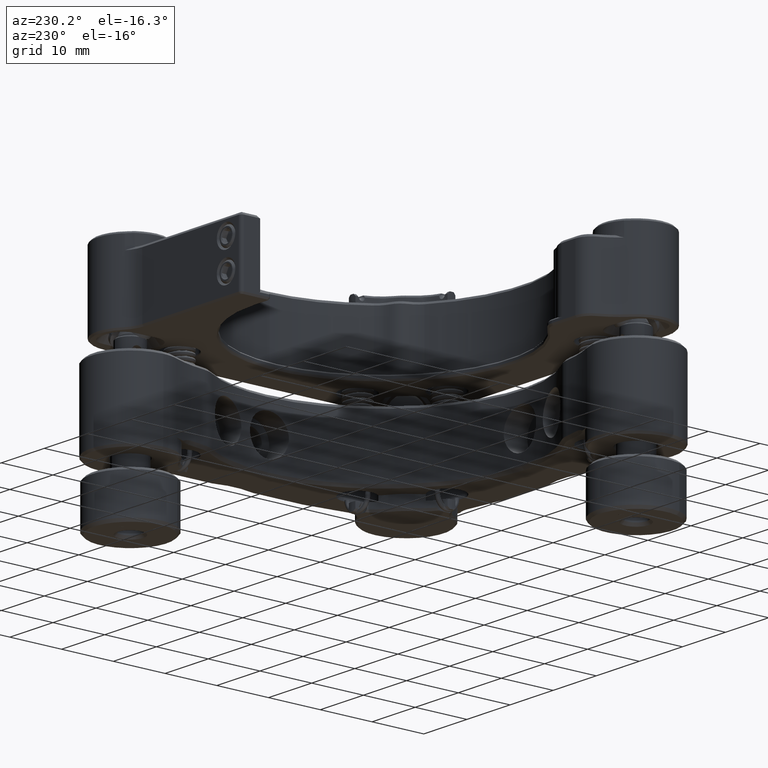
[diagram: clean part render]
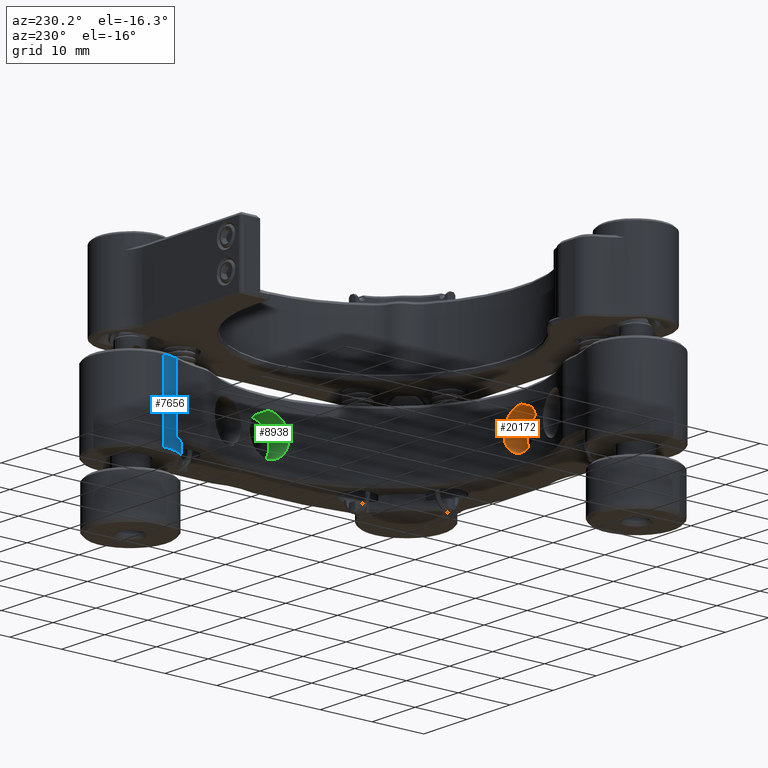
[diagram: same view with three faces highlighted in distinct colors, each labeled with its STEP entity id]
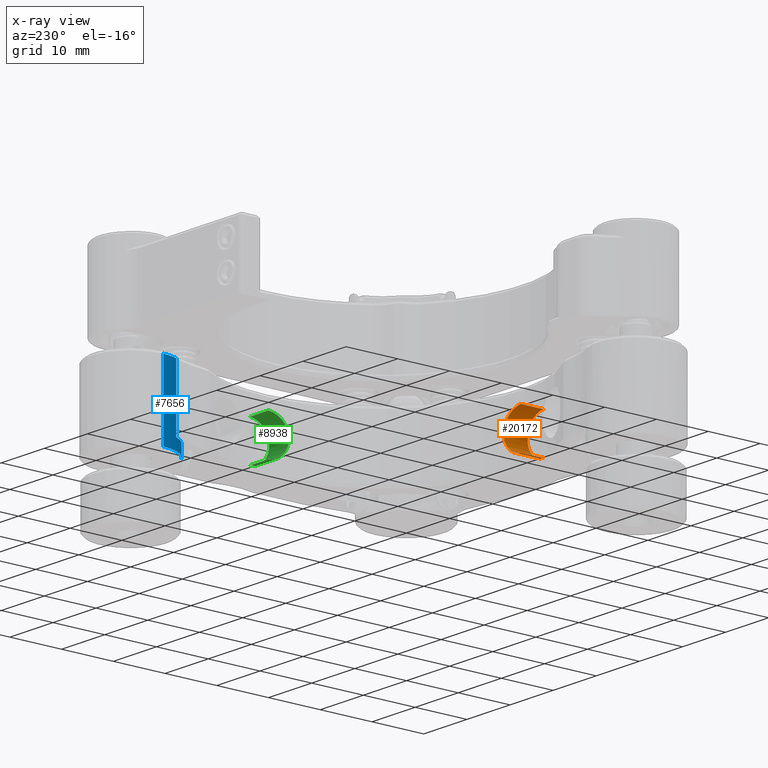
[diagram: x-ray of the same camera — body ghosted, the three highlighted faces saturated]
A machine part, auxiliary view with three faces highlighted in distinct colors.
The next image is the same camera in x-ray (body ghosted, the three faces saturated) — at least one of them is partly hidden behind the body in this view.
Their STEP definitions:

[orange] entity #20172 — the highlighted cylindrical surface (edge-blend (fillet) strip) has radius 3.7703 mm, axis along (-0, -1, 0).
#42 = B_SPLINE_CURVE_WITH_KNOTS ( 'NONE', 3,
 ( #7611, #1276, #28153, #18933, #25539, #19211, #26099, #16575, #9974, #12726, #12158, #1004, #25963, #8189, #10393, #5407, #8042, #27881, #21113, #14924, #7762, #3763, #5979, #21403, #16851, #16994, #19074, #5842, #17143, #7900, #1146, #16718, #21263, #21684 ),
 .UNSPECIFIED., .F., .F.,
 ( 4, 2, 2, 2, 2, 2, 2, 2, 2, 2, 2, 2, 2, 2, 2, 2, 4 ),
 ( 3.469446951953614189E-18, 0.0007376561240977195675, 0.001475312248195435666, 0.002212968372293151655, 0.002950624496390867862, 0.003688280620488584068, 0.004425936744586299841, 0.005163592868684016048, 0.005901248992781732254, 0.006638905116879448461, 0.007376561240977164667, 0.008114217365074880006, 0.008851873489172596213, 0.009589529613270312419, 0.01032718573736802863, 0.01106484186146574483, 0.01180249798556346104 ),
 .UNSPECIFIED. ) ;
#1004 = CARTESIAN_POINT ( 'NONE',  ( 22.10476989317027474, 14.16033097439479072, 49.40504102381640195 ) ) ;
#1146 = CARTESIAN_POINT ( 'NONE',  ( 24.39637902986271456, 13.97616607239538133, 54.94404336694015001 ) ) ;
#1276 = CARTESIAN_POINT ( 'NONE',  ( 25.12711925288105874, 13.95924649506379822, 47.52471170018480251 ) ) ;
#3763 = CARTESIAN_POINT ( 'NONE',  ( 21.98769283178292611, 14.17525771099215248, 52.96592419483435066 ) ) ;
#4610 = AXIS2_PLACEMENT_3D ( 'NONE', #25862, #18976, #23943 ) ;
#5014 = DIRECTION ( 'NONE',  ( -0.000000000000000000, -1.000000000000000000, -0.000000000000000000 ) ) ;
#5407 = CARTESIAN_POINT ( 'NONE',  ( 21.63033247960795791, 14.22362196544049695, 50.80249974806528712 ) ) ;
#5483 = DIRECTION ( 'NONE',  ( -0.000000000000000000, -1.000000000000000000, -0.000000000000000000 ) ) ;
#5842 = CARTESIAN_POINT ( 'NONE',  ( 23.48434237088630283, 14.02567020015363930, 54.56534500994882819 ) ) ;
#5979 = CARTESIAN_POINT ( 'NONE',  ( 22.10567037592638329, 14.16022696190246144, 53.18625125397421982 ) ) ;
#7611 = CARTESIAN_POINT ( 'NONE',  ( 25.37656882689397975, 13.95924649506379644, 47.52471170018480251 ) ) ;
#7762 = CARTESIAN_POINT ( 'NONE',  ( 21.79850721279483139, 14.20018146839782425, 52.50905154257457497 ) ) ;
#7833 = EDGE_CURVE ( 'NONE', #12141, #25299, #22822, .T. ) ;
#7858 = CARTESIAN_POINT ( 'NONE',  ( 25.37656882689398330, 9.641246495063857225, 55.06533670018478688 ) ) ;
#7900 = CARTESIAN_POINT ( 'NONE',  ( 24.16132574393052224, 13.98596769113505900, 54.87265622215816308 ) ) ;
#8042 = CARTESIAN_POINT ( 'NONE',  ( 21.60634823310222430, 14.22708111639233763, 51.04736425306089131 ) ) ;
#8189 = CARTESIAN_POINT ( 'NONE',  ( 21.79976161235194709, 14.20001365664462334, 50.07765369036393110 ) ) ;
#8207 = EDGE_LOOP ( 'NONE', ( #18237, #8501, #18986, #9811 ) ) ;
#8240 = CYLINDRICAL_SURFACE ( 'NONE', #4610, 3.770312499999983746 ) ;
#8501 = ORIENTED_EDGE ( 'NONE', *, *, #23695, .T. ) ;
#8780 = CARTESIAN_POINT ( 'NONE',  ( 25.37656882689398330, 5.069246495063857161, 47.52471170018480962 ) ) ;
#9811 = ORIENTED_EDGE ( 'NONE', *, *, #7833, .F. ) ;
#9974 = CARTESIAN_POINT ( 'NONE',  ( 22.88364109223867970, 14.07543941895698936, 48.45585141994685330 ) ) ;
#10393 = CARTESIAN_POINT ( 'NONE',  ( 21.72723564549185582, 14.21005534733393283, 50.31561905583442496 ) ) ;
#12141 = VERTEX_POINT ( 'NONE', #12944 ) ;
#12158 = CARTESIAN_POINT ( 'NONE',  ( 22.38038694353434011, 14.12771727079344153, 48.99293845210792853 ) ) ;
#12333 = VECTOR ( 'NONE', #28905, 1000.000000000000000 ) ;
#12726 = CARTESIAN_POINT ( 'NONE',  ( 22.53634045917296547, 14.11033886777820179, 48.80329917814676577 ) ) ;
#12866 = VECTOR ( 'NONE', #5483, 1000.000000000000000 ) ;
#12944 = CARTESIAN_POINT ( 'NONE',  ( 25.37656882689397975, 13.95924649506379644, 47.52471170018480251 ) ) ;
#13407 = CARTESIAN_POINT ( 'NONE',  ( 25.37656882689398330, 13.95924649506379644, 55.06533670018477977 ) ) ;
#13960 = DIRECTION ( 'NONE',  ( 0.000000000000000000, 0.000000000000000000, -1.000000000000000000 ) ) ;
#14924 = CARTESIAN_POINT ( 'NONE',  ( 21.72718992872334454, 14.21006210880483067, 52.27386678692716515 ) ) ;
#15867 = AXIS2_PLACEMENT_3D ( 'NONE', #25140, #5014, #13960 ) ;
#16101 = VERTEX_POINT ( 'NONE', #7858 ) ;
#16575 = CARTESIAN_POINT ( 'NONE',  ( 23.07734313213555311, 14.05774536952931797, 48.29677628363449315 ) ) ;
#16718 = CARTESIAN_POINT ( 'NONE',  ( 24.88021030507117715, 13.96276760726819965, 55.04065380485286596 ) ) ;
#16851 = CARTESIAN_POINT ( 'NONE',  ( 22.53462745292001657, 14.11050844244846303, 53.78508599245897415 ) ) ;
#16994 = CARTESIAN_POINT ( 'NONE',  ( 22.88612071282985738, 14.07519281455226512, 54.13662703900713069 ) ) ;
#17143 = CARTESIAN_POINT ( 'NONE',  ( 23.70495655099534815, 14.01070345503934966, 54.68353110358706459 ) ) ;
#17835 = CARTESIAN_POINT ( 'NONE',  ( 25.37656882689398330, 9.641246495063857225, 47.52471170018480251 ) ) ;
#18237 = ORIENTED_EDGE ( 'NONE', *, *, #21351, .T. ) ;
#18933 = CARTESIAN_POINT ( 'NONE',  ( 24.39956017503727637, 13.97605603924775153, 47.64520548320444249 ) ) ;
#18976 = DIRECTION ( 'NONE',  ( -0.000000000000000000, -1.000000000000000000, -0.000000000000000000 ) ) ;
#18986 = ORIENTED_EDGE ( 'NONE', *, *, #27059, .T. ) ;
#19074 = CARTESIAN_POINT ( 'NONE',  ( 23.07625499369126132, 14.05784553635074374, 54.29236892983590934 ) ) ;
#19211 = CARTESIAN_POINT ( 'NONE',  ( 23.70343210076023510, 14.01079873935426257, 47.90726214008126504 ) ) ;
#20172 = ADVANCED_FACE ( 'NONE', ( #28063 ), #8240, .F. ) ;
#21113 = CARTESIAN_POINT ( 'NONE',  ( 21.63076539719365243, 14.22356099660328610, 51.79005532857867422 ) ) ;
#21263 = CARTESIAN_POINT ( 'NONE',  ( 25.13034173180142261, 13.95924649506379822, 55.06533670018479398 ) ) ;
#21338 = LINE ( 'NONE', #27660, #12866 ) ;
#21351 = EDGE_CURVE ( 'NONE', #12141, #23523, #42, .T. ) ;
#21403 = CARTESIAN_POINT ( 'NONE',  ( 22.37851502601625953, 14.12793624197515463, 53.59441321741739728 ) ) ;
#21684 = CARTESIAN_POINT ( 'NONE',  ( 25.37656882689398330, 13.95924649506379644, 55.06533670018477977 ) ) ;
#22822 = LINE ( 'NONE', #8780, #12333 ) ;
#23523 = VERTEX_POINT ( 'NONE', #13407 ) ;
#23695 = EDGE_CURVE ( 'NONE', #23523, #16101, #21338, .T. ) ;
#23943 = DIRECTION ( 'NONE',  ( 0.000000000000000000, 0.000000000000000000, -1.000000000000000000 ) ) ;
#25140 = CARTESIAN_POINT ( 'NONE',  ( 25.37656882689398330, 9.641246495063857225, 51.29502420018479114 ) ) ;
#25299 = VERTEX_POINT ( 'NONE', #17835 ) ;
#25539 = CARTESIAN_POINT ( 'NONE',  ( 24.15991463039726383, 13.98603159907343851, 47.71786459424584592 ) ) ;
#25862 = CARTESIAN_POINT ( 'NONE',  ( 25.37656882689398330, 5.069246495063857161, 51.29502420018479114 ) ) ;
#25963 = CARTESIAN_POINT ( 'NONE',  ( 21.98785552115188935, 14.17523885144085583, 49.62404755771850517 ) ) ;
#26099 = CARTESIAN_POINT ( 'NONE',  ( 23.48697977085298305, 14.02547676107670505, 48.02311610798143704 ) ) ;
#27059 = EDGE_CURVE ( 'NONE', #16101, #25299, #28539, .T. ) ;
#27660 = CARTESIAN_POINT ( 'NONE',  ( 25.37656882689398330, 5.069246495063857161, 55.06533670018477977 ) ) ;
#27881 = CARTESIAN_POINT ( 'NONE',  ( 21.60616494286484013, 14.22710729082757375, 51.53987788416527849 ) ) ;
#28063 = FACE_OUTER_BOUND ( 'NONE', #8207, .T. ) ;
#28153 = CARTESIAN_POINT ( 'NONE',  ( 24.88190059546632327, 13.96274296121777070, 47.54922309582286744 ) ) ;
#28539 = CIRCLE ( 'NONE', #15867, 3.770312499999990852 ) ;
#28905 = DIRECTION ( 'NONE',  ( -0.000000000000000000, -1.000000000000000000, -0.000000000000000000 ) ) ;

[blue] entity #7656 — the highlighted cylindrical surface (partial cylindrical patch) has radius 7.62 mm, axis along (0, -0, 1).
#488 = DIRECTION ( 'NONE',  ( 1.000000000000000000, 0.000000000000000000, 0.000000000000000000 ) ) ;
#578 = VERTEX_POINT ( 'NONE', #11325 ) ;
#1262 = DIRECTION ( 'NONE',  ( -0.000000000000000000, -0.000000000000000000, -1.000000000000000000 ) ) ;
#1340 = VERTEX_POINT ( 'NONE', #28634 ) ;
#1763 = DIRECTION ( 'NONE',  ( -0.000000000000000000, -0.000000000000000000, -1.000000000000000000 ) ) ;
#2396 = CARTESIAN_POINT ( 'NONE',  ( -1.293431173105943799, 67.29924649506376966, 59.80402420018482701 ) ) ;
#3211 = VECTOR ( 'NONE', #26579, 1000.000000000000000 ) ;
#3413 = AXIS2_PLACEMENT_3D ( 'NONE', #17061, #1763, #26018 ) ;
#4669 = CIRCLE ( 'NONE', #8888, 7.620000000000028528 ) ;
#5610 = ORIENTED_EDGE ( 'NONE', *, *, #6536, .F. ) ;
#6536 = EDGE_CURVE ( 'NONE', #17235, #1340, #13994, .T. ) ;
#7656 = ADVANCED_FACE ( 'NONE', ( #19271 ), #28212, .T. ) ;
#8007 = DIRECTION ( 'NONE',  ( -0.000000000000000000, -0.000000000000000000, 1.000000000000000000 ) ) ;
#8421 = EDGE_LOOP ( 'NONE', ( #15669, #20505, #5610, #16529, #14077, #28189 ) ) ;
#8888 = AXIS2_PLACEMENT_3D ( 'NONE', #16814, #8007, #15039 ) ;
#9304 = DIRECTION ( 'NONE',  ( 0.000000000000000000, 0.000000000000000000, -1.000000000000000000 ) ) ;
#9785 = CARTESIAN_POINT ( 'NONE',  ( 6.326568826894084729, 67.29924649506376966, 45.45302420018475686 ) ) ;
#11325 = CARTESIAN_POINT ( 'NONE',  ( 5.686685992947481338, 64.24271834237710266, 57.64502420018478546 ) ) ;
#11430 = AXIS2_PLACEMENT_3D ( 'NONE', #2396, #9304, #488 ) ;
#11764 = EDGE_CURVE ( 'NONE', #12102, #14571, #4669, .T. ) ;
#12102 = VERTEX_POINT ( 'NONE', #15584 ) ;
#12196 = EDGE_CURVE ( 'NONE', #17235, #578, #24856, .T. ) ;
#12435 = LINE ( 'NONE', #21389, #14643 ) ;
#12920 = CARTESIAN_POINT ( 'NONE',  ( 6.326568826894084729, 67.29924649506376966, 60.18502420018479171 ) ) ;
#13835 = EDGE_CURVE ( 'NONE', #578, #12102, #12435, .T. ) ;
#13994 = LINE ( 'NONE', #16351, #15085 ) ;
#14077 = ORIENTED_EDGE ( 'NONE', *, *, #13835, .T. ) ;
#14571 = VERTEX_POINT ( 'NONE', #9785 ) ;
#14643 = VECTOR ( 'NONE', #1262, 1000.000000000000000 ) ;
#15039 = DIRECTION ( 'NONE',  ( 1.000000000000000000, 0.000000000000000000, 0.000000000000000000 ) ) ;
#15085 = VECTOR ( 'NONE', #18866, 1000.000000000000000 ) ;
#15584 = CARTESIAN_POINT ( 'NONE',  ( 5.686685992947523083, 64.24271834237707424, 45.45302420018476397 ) ) ;
#15669 = ORIENTED_EDGE ( 'NONE', *, *, #20340, .F. ) ;
#16351 = CARTESIAN_POINT ( 'NONE',  ( 2.490369172192526737, 60.68507572716556808, 57.64502420018478546 ) ) ;
#16529 = ORIENTED_EDGE ( 'NONE', *, *, #12196, .T. ) ;
#16814 = CARTESIAN_POINT ( 'NONE',  ( -1.293431173105943799, 67.29924649506376966, 45.45302420018475686 ) ) ;
#17061 = CARTESIAN_POINT ( 'NONE',  ( -1.293431173105943799, 67.29924649506376966, 60.18502420018479171 ) ) ;
#17235 = VERTEX_POINT ( 'NONE', #23499 ) ;
#17360 = CARTESIAN_POINT ( 'NONE',  ( -1.293431173105943799, 67.29924649506376966, 57.64502420018478546 ) ) ;
#18866 = DIRECTION ( 'NONE',  ( -0.000000000000000000, -0.000000000000000000, 1.000000000000000000 ) ) ;
#19271 = FACE_OUTER_BOUND ( 'NONE', #8421, .T. ) ;
#20009 = DIRECTION ( 'NONE',  ( 0.000000000000000000, 0.000000000000000000, 1.000000000000000000 ) ) ;
#20340 = EDGE_CURVE ( 'NONE', #25593, #14571, #28787, .T. ) ;
#20505 = ORIENTED_EDGE ( 'NONE', *, *, #22409, .T. ) ;
#21389 = CARTESIAN_POINT ( 'NONE',  ( 5.686685992947523083, 64.24271834237707424, 60.18502420018479171 ) ) ;
#22196 = DIRECTION ( 'NONE',  ( 1.000000000000000000, 0.000000000000000000, 0.000000000000000000 ) ) ;
#22409 = EDGE_CURVE ( 'NONE', #25593, #1340, #28001, .T. ) ;
#23461 = AXIS2_PLACEMENT_3D ( 'NONE', #17360, #20009, #22196 ) ;
#23499 = CARTESIAN_POINT ( 'NONE',  ( 2.490369172192520075, 60.68507572716557519, 57.64502420018478546 ) ) ;
#24856 = CIRCLE ( 'NONE', #23461, 7.619999999999993001 ) ;
#25593 = VERTEX_POINT ( 'NONE', #26295 ) ;
#26018 = DIRECTION ( 'NONE',  ( -1.000000000000000000, 0.000000000000000000, 0.000000000000000000 ) ) ;
#26295 = CARTESIAN_POINT ( 'NONE',  ( 6.326568826894084729, 67.29924649506376966, 59.80402420018482701 ) ) ;
#26579 = DIRECTION ( 'NONE',  ( -0.000000000000000000, -0.000000000000000000, -1.000000000000000000 ) ) ;
#28001 = CIRCLE ( 'NONE', #11430, 7.620000000000028528 ) ;
#28189 = ORIENTED_EDGE ( 'NONE', *, *, #11764, .T. ) ;
#28212 = CYLINDRICAL_SURFACE ( 'NONE', #3413, 7.620000000000029416 ) ;
#28634 = CARTESIAN_POINT ( 'NONE',  ( 2.490369172192526737, 60.68507572716556808, 59.80402420018482701 ) ) ;
#28787 = LINE ( 'NONE', #12920, #3211 ) ;

[green] entity #8938 — the highlighted cylindrical surface (edge-blend (fillet) strip) has radius 3.7703 mm, axis along (1, -0, 0).
#543 = CARTESIAN_POINT ( 'NONE',  ( -1.227007468016086955, 38.73702003905607683, 48.02470339042072567 ) ) ;
#981 = CARTESIAN_POINT ( 'NONE',  ( -1.029055702729224864, 36.88301014777766085, 51.78754865230425963 ) ) ;
#992 = AXIS2_PLACEMENT_3D ( 'NONE', #28177, #4072, #17019 ) ;
#1676 = CARTESIAN_POINT ( 'NONE',  ( -10.18343117310589463, 40.62924649506368979, 55.06533670018477977 ) ) ;
#2588 = CARTESIAN_POINT ( 'NONE',  ( -1.142169225721260561, 37.78730512108977280, 48.80496240791057261 ) ) ;
#2883 = CARTESIAN_POINT ( 'NONE',  ( -1.241878928815464578, 38.95610976892992738, 54.68278626028830303 ) ) ;
#3033 = CARTESIAN_POINT ( 'NONE',  ( -1.289910060901525046, 40.13288797324099022, 47.54939459551671632 ) ) ;
#3360 = CARTESIAN_POINT ( 'NONE',  ( -5.611431173105894565, 40.62924649506368979, 55.06533670018478688 ) ) ;
#3591 = DIRECTION ( 'NONE',  ( -1.000000000000000000, -0.000000000000000000, -0.000000000000000000 ) ) ;
#4072 = DIRECTION ( 'NONE',  ( -1.000000000000000000, -0.000000000000000000, -0.000000000000000000 ) ) ;
#4245 = DIRECTION ( 'NONE',  ( -1.000000000000000000, -0.000000000000000000, -0.000000000000000000 ) ) ;
#4687 = CARTESIAN_POINT ( 'NONE',  ( -10.18343117310589463, 40.62924649506368979, 47.52471170018480962 ) ) ;
#4799 = CARTESIAN_POINT ( 'NONE',  ( -1.266709977034669254, 39.41400341210030689, 47.71739217821139079 ) ) ;
#5057 = VERTEX_POINT ( 'NONE', #20334 ) ;
#5083 = CARTESIAN_POINT ( 'NONE',  ( -1.042622320835790317, 36.97991331366156231, 52.27442934453514312 ) ) ;
#5674 = CARTESIAN_POINT ( 'NONE',  ( -5.611431173105894565, 40.62924649506368979, 51.29502420018479114 ) ) ;
#6972 = VERTEX_POINT ( 'NONE', #7067 ) ;
#7067 = CARTESIAN_POINT ( 'NONE',  ( -1.293431173105927146, 40.62924649506378927, 47.52471170018480962 ) ) ;
#7070 = CARTESIAN_POINT ( 'NONE',  ( -1.293431173105926479, 40.62924649506368979, 55.06533670018477977 ) ) ;
#7145 = CARTESIAN_POINT ( 'NONE',  ( -1.266646069096289073, 39.41259229856696322, 54.87218380612374347 ) ) ;
#7291 = CARTESIAN_POINT ( 'NONE',  ( -1.227200907093015880, 38.73965743902268599, 54.56693229238814524 ) ) ;
#7745 = CARTESIAN_POINT ( 'NONE',  ( -1.293431173105922483, 40.37979692105077589, 55.06533670018477977 ) ) ;
#7821 = ORIENTED_EDGE ( 'NONE', *, *, #10376, .F. ) ;
#8066 = FACE_OUTER_BOUND ( 'NONE', #13708, .T. ) ;
#8938 = ADVANCED_FACE ( 'NONE', ( #8066 ), #21708, .F. ) ;
#9809 = CARTESIAN_POINT ( 'NONE',  ( -1.142338800391522025, 37.78901812734265775, 53.78674922222280941 ) ) ;
#9956 = CARTESIAN_POINT ( 'NONE',  ( -1.052496199771899343, 37.05118488096455565, 50.08099685779495758 ) ) ;
#10376 = EDGE_CURVE ( 'NONE', #26940, #13449, #23868, .T. ) ;
#11180 = B_SPLINE_CURVE_WITH_KNOTS ( 'NONE', 3,
 ( #16250, #7745, #13740, #25361, #7145, #2883, #7291, #14189, #25210, #9809, #13888, #12139, #18462, #23299, #5083, #981, #27558, #22850, #22705, #21095, #9956, #23151, #11692, #22995, #2588, #18910, #20653, #543, #27864, #4799, #14337, #3033, #16696, #11995 ),
 .UNSPECIFIED., .F., .F.,
 ( 4, 2, 2, 2, 2, 2, 2, 2, 2, 2, 2, 2, 2, 2, 2, 2, 4 ),
 ( 0.000000000000000000, 0.0007376561240977208686, 0.001475312248195441737, 0.002212968372293162497, 0.002950624496390883474, 0.003688280620488604451, 0.004425936744586324995, 0.005163592868684046405, 0.005901248992781766949, 0.006638905116879487492, 0.007376561240977208903, 0.008114217365074930313, 0.008851873489172649989, 0.009589529613270371400, 0.01032718573736809281, 0.01106484186146581249, 0.01180249798556353390 ),
 .UNSPECIFIED. ) ;
#11692 = CARTESIAN_POINT ( 'NONE',  ( -1.092450706267265037, 37.35834804409612531, 49.40379714639529851 ) ) ;
#11769 = ORIENTED_EDGE ( 'NONE', *, *, #26296, .T. ) ;
#11995 = CARTESIAN_POINT ( 'NONE',  ( -1.293431173105927146, 40.62924649506378927, 47.52471170018480962 ) ) ;
#12139 = CARTESIAN_POINT ( 'NONE',  ( -1.092346693774923549, 37.35744756133996702, 53.18500737655316613 ) ) ;
#13073 = AXIS2_PLACEMENT_3D ( 'NONE', #5674, #15058, #21953 ) ;
#13343 = LINE ( 'NONE', #4687, #20325 ) ;
#13449 = VERTEX_POINT ( 'NONE', #3360 ) ;
#13708 = EDGE_LOOP ( 'NONE', ( #11769, #14191, #25439, #7821 ) ) ;
#13740 = CARTESIAN_POINT ( 'NONE',  ( -1.289934706951956445, 40.13457826363605108, 55.04082530454673616 ) ) ;
#13888 = CARTESIAN_POINT ( 'NONE',  ( -1.124960397376272514, 37.63306461170403594, 53.59710994826164665 ) ) ;
#14189 = CARTESIAN_POINT ( 'NONE',  ( -1.194932298640402291, 38.33002080030523473, 54.29327211673510334 ) ) ;
#14191 = ORIENTED_EDGE ( 'NONE', *, *, #25818, .T. ) ;
#14337 = CARTESIAN_POINT ( 'NONE',  ( -1.276511595774340702, 39.64905669803251698, 47.64600503342942517 ) ) ;
#15058 = DIRECTION ( 'NONE',  ( -1.000000000000000000, -0.000000000000000000, -0.000000000000000000 ) ) ;
#16250 = CARTESIAN_POINT ( 'NONE',  ( -1.293431173105926479, 40.62924649506368979, 55.06533670018477977 ) ) ;
#16696 = CARTESIAN_POINT ( 'NONE',  ( -1.293431173105926257, 40.38301939997122503, 47.52471170018480962 ) ) ;
#17019 = DIRECTION ( 'NONE',  ( 0.000000000000000000, 0.000000000000000000, 1.000000000000000000 ) ) ;
#18462 = CARTESIAN_POINT ( 'NONE',  ( -1.077438816728865545, 37.24053318932158874, 52.96600084265106290 ) ) ;
#18910 = CARTESIAN_POINT ( 'NONE',  ( -1.177484853617458915, 38.13879838099963138, 48.45342136136241606 ) ) ;
#20325 = VECTOR ( 'NONE', #4245, 1000.000000000000000 ) ;
#20334 = CARTESIAN_POINT ( 'NONE',  ( -5.611431173105894565, 40.62924649506368979, 47.52471170018480251 ) ) ;
#20653 = CARTESIAN_POINT ( 'NONE',  ( -1.194832131818986731, 38.32893266186102466, 48.29767947053364452 ) ) ;
#21095 = CARTESIAN_POINT ( 'NONE',  ( -1.042615559364888922, 36.97986759689307235, 50.31618161344236029 ) ) ;
#21708 = CYLINDRICAL_SURFACE ( 'NONE', #992, 3.770312499999983746 ) ;
#21953 = DIRECTION ( 'NONE',  ( 0.000000000000000000, 0.000000000000000000, 1.000000000000000000 ) ) ;
#22705 = CARTESIAN_POINT ( 'NONE',  ( -1.029116671566436603, 36.88344306536338024, 50.79999307179086543 ) ) ;
#22850 = CARTESIAN_POINT ( 'NONE',  ( -1.025570377342146955, 36.85884261103455373, 51.05017051620427537 ) ) ;
#22995 = CARTESIAN_POINT ( 'NONE',  ( -1.124741426194573402, 37.63119269418601220, 48.99563518295213527 ) ) ;
#23151 = CARTESIAN_POINT ( 'NONE',  ( -1.077419957177573107, 37.24037049995267523, 49.62412420553515346 ) ) ;
#23299 = CARTESIAN_POINT ( 'NONE',  ( -1.052664011525101140, 37.05243928052166069, 52.51239471000563697 ) ) ;
#23868 = LINE ( 'NONE', #1676, #23926 ) ;
#23926 = VECTOR ( 'NONE', #3591, 1000.000000000000000 ) ;
#25210 = CARTESIAN_POINT ( 'NONE',  ( -1.177238249212730903, 38.13631876040837909, 54.13419698042272188 ) ) ;
#25361 = CARTESIAN_POINT ( 'NONE',  ( -1.276621628921973617, 39.65223784320698996, 54.94484291716512558 ) ) ;
#25439 = ORIENTED_EDGE ( 'NONE', *, *, #27645, .T. ) ;
#25757 = CIRCLE ( 'NONE', #13073, 3.770312499999990852 ) ;
#25818 = EDGE_CURVE ( 'NONE', #6972, #5057, #13343, .T. ) ;
#26296 = EDGE_CURVE ( 'NONE', #26940, #6972, #11180, .T. ) ;
#26940 = VERTEX_POINT ( 'NONE', #7070 ) ;
#27558 = CARTESIAN_POINT ( 'NONE',  ( -1.025596551777384402, 36.85902590127192724, 51.54268414730865544 ) ) ;
#27645 = EDGE_CURVE ( 'NONE', #5057, #13449, #25757, .T. ) ;
#27864 = CARTESIAN_POINT ( 'NONE',  ( -1.241974213130376592, 38.95763421916513636, 47.90651729678248216 ) ) ;
#28177 = CARTESIAN_POINT ( 'NONE',  ( -10.18343117310589463, 40.62924649506368979, 51.29502420018479114 ) ) ;